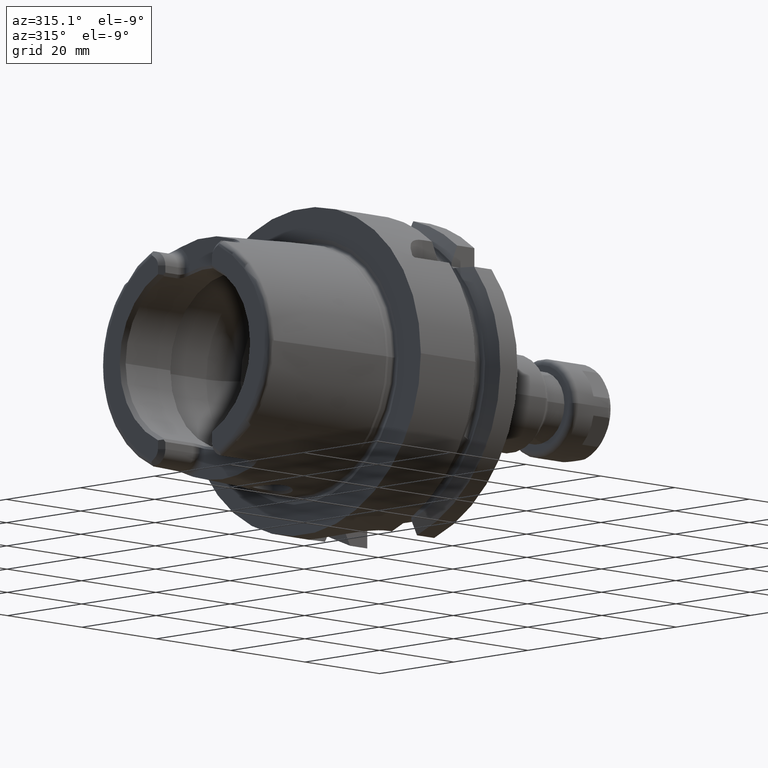
[diagram: clean part render]
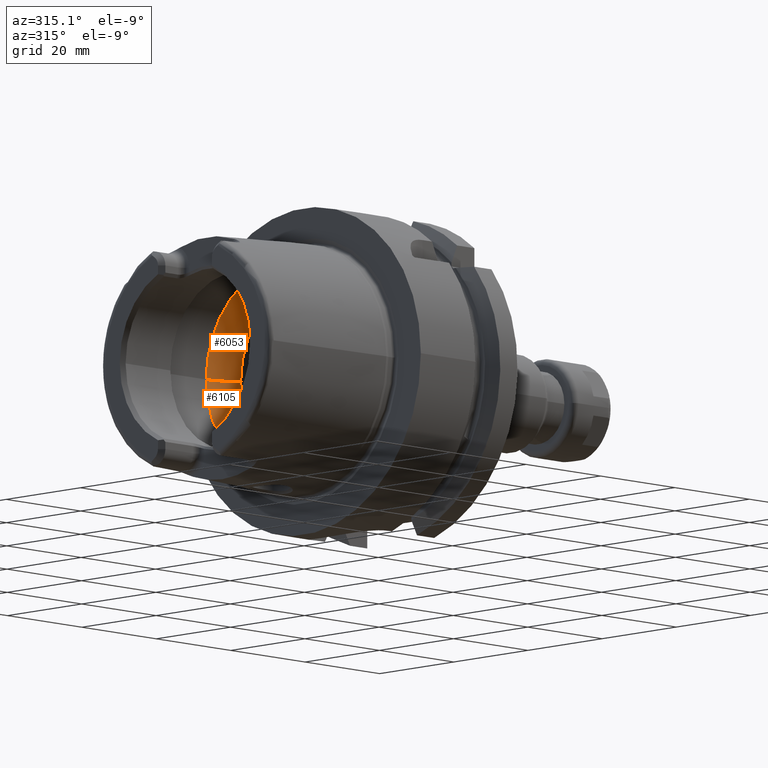
[diagram: same view with one multi-face feature highlighted, each face labeled with its STEP entity id]
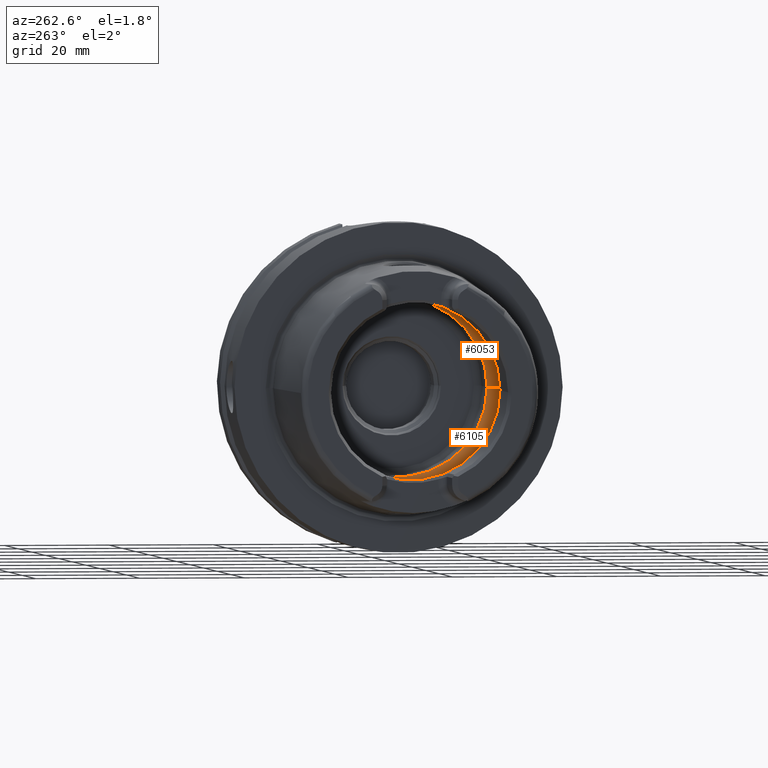
[diagram: same view with one multi-face feature highlighted, each face labeled with its STEP entity id]
A machine part, auxiliary view. The highlighted faces form ONE feature: a constant-radius fillet chain: 2 tangent blend faces with common blend radius 8 mm. The faces share edges in the B-rep.
A second angle (auxiliary view) of the same feature is appended — it is thin or edge-on in the first view.
Their STEP definitions:
[1] entity #6105 (Torus):
#2401=CARTESIAN_POINT('',(-6.344997998398E0,0.E0,0.E0));
#2402=DIRECTION('',(-1.E0,0.E0,0.E0));
#2403=DIRECTION('',(0.E0,-1.324147307845E-1,-9.911944002421E-1));
#2404=AXIS2_PLACEMENT_3D('',#2401,#2402,#2403);
#2414=CARTESIAN_POINT('',(-6.344997998398E0,0.E0,0.E0));
#2415=DIRECTION('',(-1.E0,0.E0,0.E0));
#2416=DIRECTION('',(0.E0,1.E0,0.E0));
#2417=AXIS2_PLACEMENT_3D('',#2414,#2415,#2416);
#2419=CARTESIAN_POINT('',(-6.344997998398E0,2.648294615690E0,
-1.982388800484E1));
#2420=CARTESIAN_POINT('',(-6.231006837183E0,2.534014746903E0,
-1.983915477598E1));
#2421=CARTESIAN_POINT('',(-6.017025196500E0,2.289847772066E0,
-1.986482090135E1));
#2422=CARTESIAN_POINT('',(-5.744951143506E0,1.883597112482E0,
-1.989126748234E1));
#2423=CARTESIAN_POINT('',(-5.525878619397E0,1.440092942940E0,
-1.990841427492E1));
#2424=CARTESIAN_POINT('',(-5.367928580614E0,9.752961668640E-1,
-1.991846807626E1));
#2425=CARTESIAN_POINT('',(-5.271318281982E0,4.905129038781E-1,
-1.992366853166E1));
#2426=CARTESIAN_POINT('',(-5.25E0,1.634283701959E-1,-1.992470689575E1));
#2427=CARTESIAN_POINT('',(-5.25E0,0.E0,-1.992470689575E1));
#2429=CARTESIAN_POINT('',(-6.344997998398E0,1.2E1,0.E0));
#2430=DIRECTION('',(0.E0,0.E0,1.E0));
#2431=DIRECTION('',(7.806247497998E-1,6.25E-1,0.E0));
#2432=AXIS2_PLACEMENT_3D('',#2429,#2430,#2431);
#2434=CARTESIAN_POINT('',(-1.E-1,0.E0,0.E0));
#2435=DIRECTION('',(-1.E0,0.E0,0.E0));
#2436=DIRECTION('',(0.E0,1.E0,0.E0));
#2437=AXIS2_PLACEMENT_3D('',#2434,#2435,#2436);
#2439=CARTESIAN_POINT('',(-6.344997998398E0,-1.2E1,0.E0));
#2440=DIRECTION('',(0.E0,0.E0,-1.E0));
#2441=DIRECTION('',(7.806247497998E-1,-6.25E-1,0.E0));
#2442=AXIS2_PLACEMENT_3D('',#2439,#2440,#2441);
#2444=CARTESIAN_POINT('',(-5.25E0,0.E0,-1.992470689575E1));
#2445=CARTESIAN_POINT('',(-5.25E0,-1.633406105217E-1,-1.992470689575E1));
#2446=CARTESIAN_POINT('',(-5.271288835069E0,-4.903023440841E-1,
-1.992367004204E1));
#2447=CARTESIAN_POINT('',(-5.367909615515E0,-9.752378390196E-1,
-1.991846919896E1));
#2448=CARTESIAN_POINT('',(-5.525833514658E0,-1.439976302563E0,
-1.990841729053E1));
#2449=CARTESIAN_POINT('',(-5.744910891080E0,-1.883544144465E0,
-1.989127157512E1));
#2450=CARTESIAN_POINT('',(-6.017104191130E0,-2.289956477197E0,
-1.986481279983E1));
#2451=CARTESIAN_POINT('',(-6.231050600033E0,-2.534058620591E0,
-1.983914891484E1));
#2452=CARTESIAN_POINT('',(-6.344997998398E0,-2.648294615690E0,
-1.982388800484E1));
#2708=CARTESIAN_POINT('',(-1.E-1,1.7E1,0.E0));
#2709=VERTEX_POINT('',#2708);
#2710=CARTESIAN_POINT('',(-6.344997998398E0,2.E1,0.E0));
#2711=VERTEX_POINT('',#2710);
#2720=CARTESIAN_POINT('',(-1.E-1,-1.7E1,0.E0));
#2721=VERTEX_POINT('',#2720);
#2722=CARTESIAN_POINT('',(-6.344997998398E0,-2.E1,0.E0));
#2723=VERTEX_POINT('',#2722);
#2895=VERTEX_POINT('',#2419);
#2896=VERTEX_POINT('',#2427);
#2897=VERTEX_POINT('',#2452);
#6090=CARTESIAN_POINT('',(-6.344997998398E0,0.E0,0.E0));
#6091=DIRECTION('',(1.E0,0.E0,0.E0));
#6092=DIRECTION('',(0.E0,-1.E0,0.E0));
#6093=AXIS2_PLACEMENT_3D('',#6090,#6091,#6092);
#6094=TOROIDAL_SURFACE('',#6093,1.2E1,8.E0);
#6095=ORIENTED_EDGE('',*,*,#6028,.F.);
#6096=ORIENTED_EDGE('',*,*,#6085,.F.);
#6097=ORIENTED_EDGE('',*,*,#6047,.F.);
#6099=ORIENTED_EDGE('',*,*,#6098,.T.);
#6100=ORIENTED_EDGE('',*,*,#6043,.T.);
#6101=ORIENTED_EDGE('',*,*,#6079,.F.);
#6102=ORIENTED_EDGE('',*,*,#5792,.F.);
#6103=EDGE_LOOP('',(#6095,#6096,#6097,#6099,#6100,#6101,#6102));
#6104=FACE_OUTER_BOUND('',#6103,.F.);
#6105=ADVANCED_FACE('',(#6104),#6094,.F.);
#2405=CIRCLE('',#2404,2.E1);
#2418=CIRCLE('',#2417,2.E1);
#2428=B_SPLINE_CURVE_WITH_KNOTS('',3,(#2419,#2420,#2421,#2422,#2423,#2424,#2425,
#2426,#2427),.UNSPECIFIED.,.F.,.F.,(4,1,1,1,1,1,4),(0.E0,1.666666666667E-1,
3.333333333333E-1,5.E-1,6.666666666667E-1,8.333333333333E-1,1.E0),
.UNSPECIFIED.);
#2433=CIRCLE('',#2432,8.E0);
#2438=CIRCLE('',#2437,1.7E1);
#2443=CIRCLE('',#2442,8.E0);
#2453=B_SPLINE_CURVE_WITH_KNOTS('',3,(#2444,#2445,#2446,#2447,#2448,#2449,#2450,
#2451,#2452),.UNSPECIFIED.,.F.,.F.,(4,1,1,1,1,1,4),(0.E0,1.666666666667E-1,
3.333333333333E-1,5.E-1,6.666666666667E-1,8.333333333333E-1,1.E0),
.UNSPECIFIED.);
#5792=EDGE_CURVE('',#2896,#2897,#2453,.T.);
#6028=EDGE_CURVE('',#2895,#2896,#2428,.T.);
#6043=EDGE_CURVE('',#2721,#2723,#2443,.T.);
#6047=EDGE_CURVE('',#2709,#2711,#2433,.T.);
#6079=EDGE_CURVE('',#2897,#2723,#2405,.T.);
#6085=EDGE_CURVE('',#2711,#2895,#2418,.T.);
#6098=EDGE_CURVE('',#2709,#2721,#2438,.T.);
[2] entity #6053 (Torus):
#2286=CARTESIAN_POINT('',(-5.25E0,0.E0,1.992470689575E1));
#2287=CARTESIAN_POINT('',(-5.25E0,1.634249880127E-1,1.992470689575E1));
#2288=CARTESIAN_POINT('',(-5.271317000323E0,4.905125142286E-1,
1.992366860007E1));
#2289=CARTESIAN_POINT('',(-5.367938073203E0,9.753406287590E-1,
1.991846757388E1));
#2290=CARTESIAN_POINT('',(-5.525913254439E0,1.440181253243E0,1.990841194030E1));
#2291=CARTESIAN_POINT('',(-5.745012466850E0,1.883704211740E0,1.989126222791E1));
#2292=CARTESIAN_POINT('',(-6.017092970824E0,2.289932260455E0,1.986481338490E1));
#2293=CARTESIAN_POINT('',(-6.231037578916E0,2.534045566496E0,1.983915065875E1));
#2294=CARTESIAN_POINT('',(-6.344997998398E0,2.648294615690E0,1.982388800484E1));
#2296=CARTESIAN_POINT('',(-6.344997998398E0,-2.648294615690E0,
1.982388800484E1));
#2297=CARTESIAN_POINT('',(-6.231045843136E0,-2.534053851646E0,
1.983914955193E1));
#2298=CARTESIAN_POINT('',(-6.017093742818E0,-2.289943440357E0,
1.986481395775E1));
#2299=CARTESIAN_POINT('',(-5.744901596897E0,-1.883527876206E0,
1.989127237006E1));
#2300=CARTESIAN_POINT('',(-5.525828432433E0,-1.439963272778E0,
1.990841763195E1));
#2301=CARTESIAN_POINT('',(-5.367908372542E0,-9.752317929729E-1,
1.991846926373E1));
#2302=CARTESIAN_POINT('',(-5.271289109403E0,-4.903031116233E-1,
1.992367002777E1));
#2303=CARTESIAN_POINT('',(-5.25E0,-1.633414179458E-1,1.992470689575E1));
#2304=CARTESIAN_POINT('',(-5.25E0,0.E0,1.992470689575E1));
#2306=CARTESIAN_POINT('',(-1.E-1,0.E0,0.E0));
#2307=DIRECTION('',(1.E0,0.E0,0.E0));
#2308=DIRECTION('',(0.E0,1.E0,0.E0));
#2309=AXIS2_PLACEMENT_3D('',#2306,#2307,#2308);
#2331=CARTESIAN_POINT('',(-6.344997998398E0,0.E0,0.E0));
#2332=DIRECTION('',(1.E0,0.E0,0.E0));
#2333=DIRECTION('',(0.E0,1.E0,0.E0));
#2334=AXIS2_PLACEMENT_3D('',#2331,#2332,#2333);
#2336=CARTESIAN_POINT('',(-6.344997998398E0,0.E0,0.E0));
#2337=DIRECTION('',(1.E0,0.E0,0.E0));
#2338=DIRECTION('',(0.E0,-1.324147307845E-1,9.911944002421E-1));
#2339=AXIS2_PLACEMENT_3D('',#2336,#2337,#2338);
#2429=CARTESIAN_POINT('',(-6.344997998398E0,1.2E1,0.E0));
#2430=DIRECTION('',(0.E0,0.E0,1.E0));
#2431=DIRECTION('',(7.806247497998E-1,6.25E-1,0.E0));
#2432=AXIS2_PLACEMENT_3D('',#2429,#2430,#2431);
#2439=CARTESIAN_POINT('',(-6.344997998398E0,-1.2E1,0.E0));
#2440=DIRECTION('',(0.E0,0.E0,-1.E0));
#2441=DIRECTION('',(7.806247497998E-1,-6.25E-1,0.E0));
#2442=AXIS2_PLACEMENT_3D('',#2439,#2440,#2441);
#2708=CARTESIAN_POINT('',(-1.E-1,1.7E1,0.E0));
#2709=VERTEX_POINT('',#2708);
#2710=CARTESIAN_POINT('',(-6.344997998398E0,2.E1,0.E0));
#2711=VERTEX_POINT('',#2710);
#2720=CARTESIAN_POINT('',(-1.E-1,-1.7E1,0.E0));
#2721=VERTEX_POINT('',#2720);
#2722=CARTESIAN_POINT('',(-6.344997998398E0,-2.E1,0.E0));
#2723=VERTEX_POINT('',#2722);
#2891=VERTEX_POINT('',#2286);
#2892=VERTEX_POINT('',#2294);
#2893=VERTEX_POINT('',#2296);
#6034=CARTESIAN_POINT('',(-6.344997998398E0,0.E0,0.E0));
#6035=DIRECTION('',(1.E0,0.E0,0.E0));
#6036=DIRECTION('',(0.E0,-1.E0,0.E0));
#6037=AXIS2_PLACEMENT_3D('',#6034,#6035,#6036);
#6038=TOROIDAL_SURFACE('',#6037,1.2E1,8.E0);
#6039=ORIENTED_EDGE('',*,*,#6011,.F.);
#6040=ORIENTED_EDGE('',*,*,#5777,.F.);
#6042=ORIENTED_EDGE('',*,*,#6041,.T.);
#6044=ORIENTED_EDGE('',*,*,#6043,.F.);
#6046=ORIENTED_EDGE('',*,*,#6045,.F.);
#6048=ORIENTED_EDGE('',*,*,#6047,.T.);
#6050=ORIENTED_EDGE('',*,*,#6049,.T.);
#6051=EDGE_LOOP('',(#6039,#6040,#6042,#6044,#6046,#6048,#6050));
#6052=FACE_OUTER_BOUND('',#6051,.F.);
#6053=ADVANCED_FACE('',(#6052),#6038,.F.);
#2295=B_SPLINE_CURVE_WITH_KNOTS('',3,(#2286,#2287,#2288,#2289,#2290,#2291,#2292,
#2293,#2294),.UNSPECIFIED.,.F.,.F.,(4,1,1,1,1,1,4),(0.E0,1.666666666667E-1,
3.333333333333E-1,5.E-1,6.666666666667E-1,8.333333333333E-1,1.E0),
.UNSPECIFIED.);
#2305=B_SPLINE_CURVE_WITH_KNOTS('',3,(#2296,#2297,#2298,#2299,#2300,#2301,#2302,
#2303,#2304),.UNSPECIFIED.,.F.,.F.,(4,1,1,1,1,1,4),(0.E0,1.666666666667E-1,
3.333333333333E-1,5.E-1,6.666666666667E-1,8.333333333333E-1,1.E0),
.UNSPECIFIED.);
#2310=CIRCLE('',#2309,1.7E1);
#2335=CIRCLE('',#2334,2.E1);
#2340=CIRCLE('',#2339,2.E1);
#2433=CIRCLE('',#2432,8.E0);
#2443=CIRCLE('',#2442,8.E0);
#5777=EDGE_CURVE('',#2893,#2891,#2305,.T.);
#6011=EDGE_CURVE('',#2891,#2892,#2295,.T.);
#6041=EDGE_CURVE('',#2893,#2723,#2340,.T.);
#6043=EDGE_CURVE('',#2721,#2723,#2443,.T.);
#6045=EDGE_CURVE('',#2709,#2721,#2310,.T.);
#6047=EDGE_CURVE('',#2709,#2711,#2433,.T.);
#6049=EDGE_CURVE('',#2711,#2892,#2335,.T.);